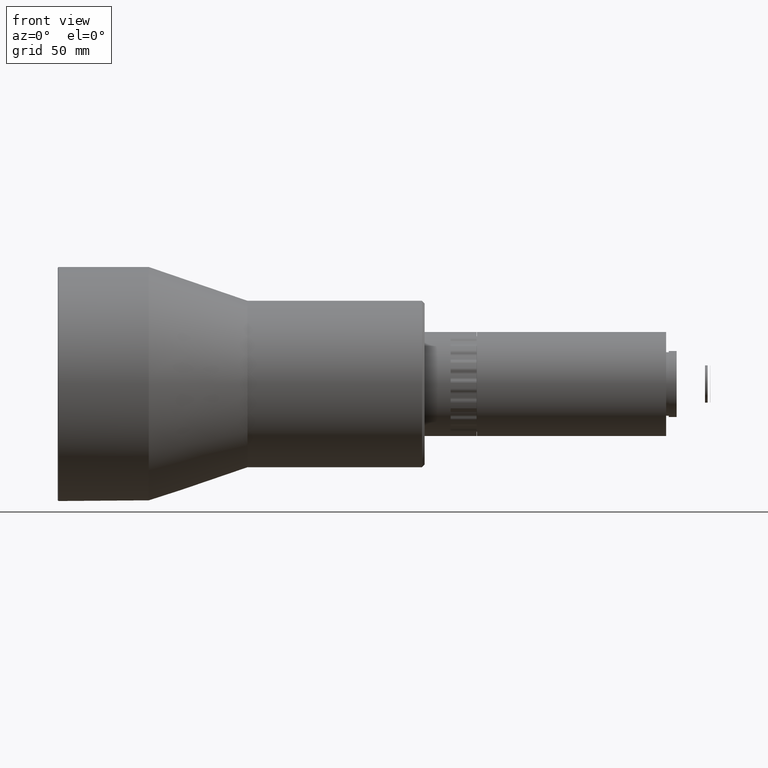
[diagram: clean part render]
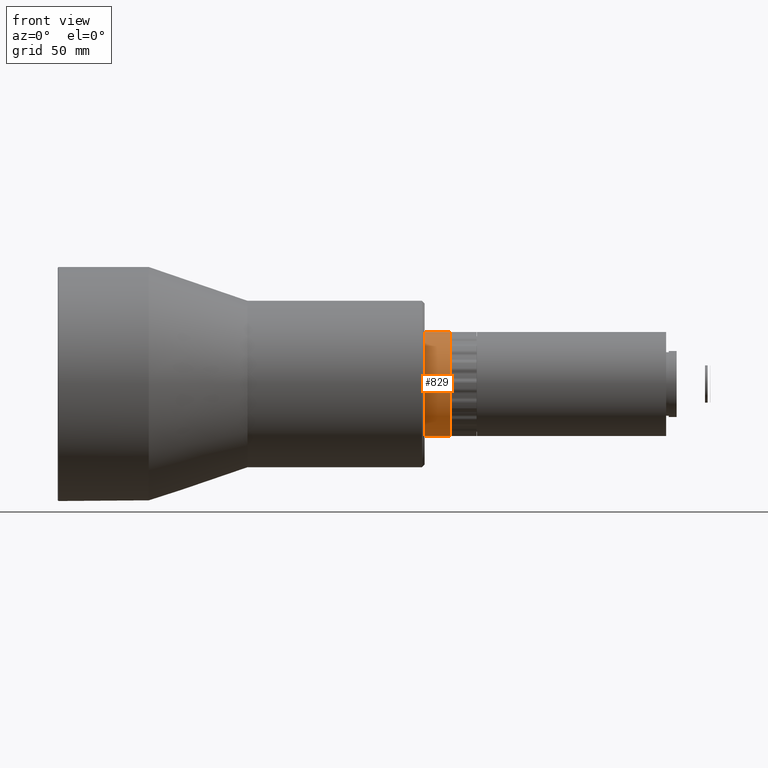
[diagram: same view with one face highlighted and labeled with its STEP entity id]
A machine part, front view. The second image highlights one B-rep face of the part: STEP entity #829.
In plain terms, the highlighted cylindrical surface (bore or boss wall) has radius 20 mm, axis along (-1, -0, -0).
Its self-contained STEP definition (entity closure, byte-faithful):
#80 = FACE_OUTER_BOUND ( 'NONE', #3718, .T. ) ;
#168 = CIRCLE ( 'NONE', #6572, 19.99999999999998934 ) ;
#356 = DIRECTION ( 'NONE',  ( -1.000000000000000000, -0.000000000000000000, -0.000000000000000000 ) ) ;
#369 = DIRECTION ( 'NONE',  ( 0.000000000000000000, 0.000000000000000000, 1.000000000000000000 ) ) ;
#734 = ORIENTED_EDGE ( 'NONE', *, *, #6171, .T. ) ;
#829 = ADVANCED_FACE ( 'NONE', ( #80, #6701 ), #4925, .T. ) ;
#1123 = ORIENTED_EDGE ( 'NONE', *, *, #3238, .T. ) ;
#1341 = DIRECTION ( 'NONE',  ( 0.000000000000000000, 0.000000000000000000, 1.000000000000000000 ) ) ;
#1859 = DIRECTION ( 'NONE',  ( -1.000000000000000000, -0.000000000000000000, -0.000000000000000000 ) ) ;
#2154 = CARTESIAN_POINT ( 'NONE',  ( 63.41821056476261731, 14.57465430743931201, 160.0850000000000080 ) ) ;
#3238 = EDGE_CURVE ( 'NONE', #7153, #7153, #168, .T. ) ;
#3621 = CARTESIAN_POINT ( 'NONE',  ( -105.9567210347150166, 14.57465430743931201, 160.0850000000000080 ) ) ;
#3641 = CARTESIAN_POINT ( 'NONE',  ( 73.41821056476261731, 14.57465430743931201, 180.0850000000000080 ) ) ;
#3718 = EDGE_LOOP ( 'NONE', ( #734 ) ) ;
#3734 = CIRCLE ( 'NONE', #4365, 19.99999999999998934 ) ;
#4365 = AXIS2_PLACEMENT_3D ( 'NONE', #2154, #4547, #369 ) ;
#4431 = VERTEX_POINT ( 'NONE', #4946 ) ;
#4547 = DIRECTION ( 'NONE',  ( 1.000000000000000000, 0.000000000000000000, 0.000000000000000000 ) ) ;
#4925 = CYLINDRICAL_SURFACE ( 'NONE', #6556, 19.99999999999998934 ) ;
#4934 = EDGE_LOOP ( 'NONE', ( #1123 ) ) ;
#4946 = CARTESIAN_POINT ( 'NONE',  ( 63.41821056476261731, 14.57465430743931201, 180.0850000000000080 ) ) ;
#5792 = CARTESIAN_POINT ( 'NONE',  ( 73.41821056476261731, 14.57465430743931201, 160.0850000000000080 ) ) ;
#6171 = EDGE_CURVE ( 'NONE', #4431, #4431, #3734, .T. ) ;
#6378 = DIRECTION ( 'NONE',  ( 0.000000000000000000, 0.000000000000000000, 1.000000000000000000 ) ) ;
#6556 = AXIS2_PLACEMENT_3D ( 'NONE', #3621, #1859, #1341 ) ;
#6572 = AXIS2_PLACEMENT_3D ( 'NONE', #5792, #356, #6378 ) ;
#6701 = FACE_OUTER_BOUND ( 'NONE', #4934, .T. ) ;
#7153 = VERTEX_POINT ( 'NONE', #3641 ) ;